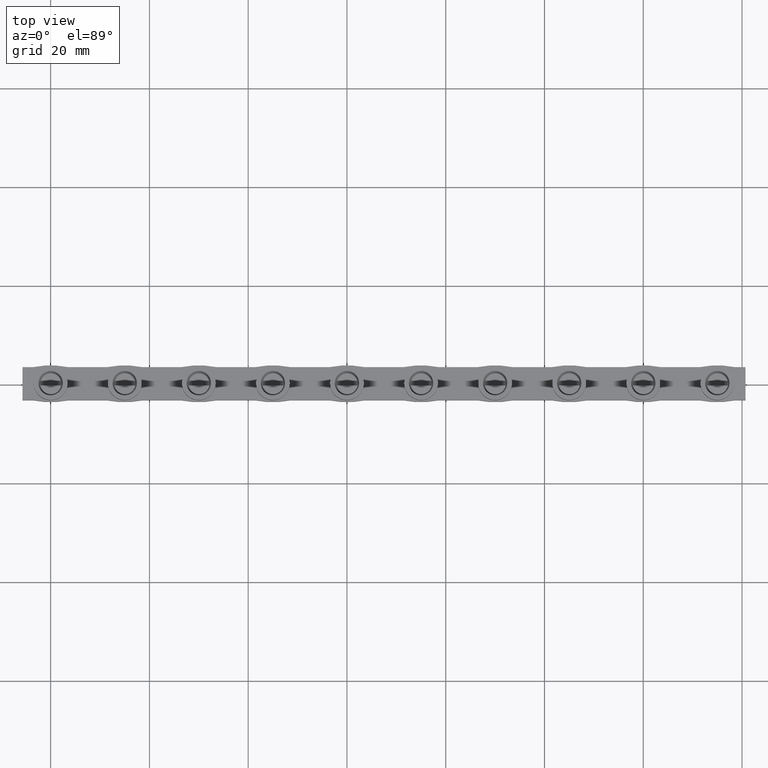
[diagram: clean part render]
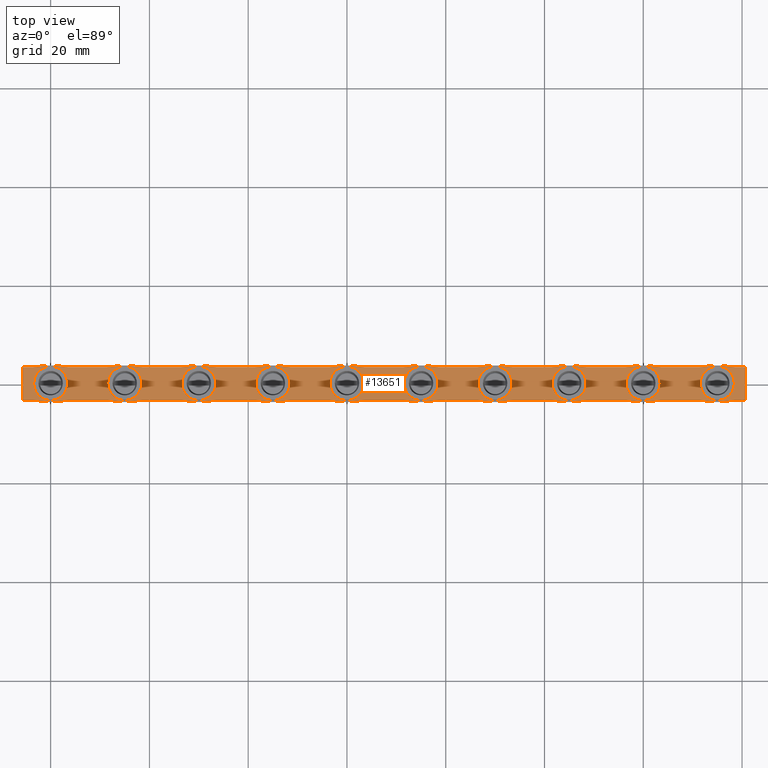
[diagram: same view with one face highlighted and labeled with its STEP entity id]
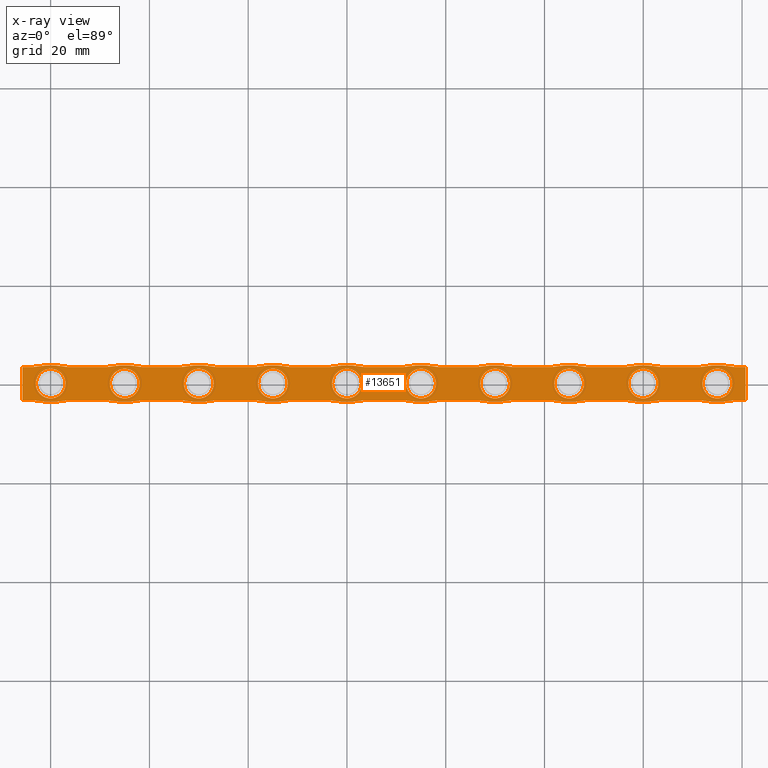
[diagram: x-ray of the same camera — body ghosted, the highlighted face saturated]
A machine part, top view. The second image highlights one B-rep face of the part: STEP entity #13651.
The next image is the same camera in x-ray: the body ghosted, the highlighted face saturated — about 0% of this face is hidden behind the body in this view.
In plain terms, the highlighted planar face has unit normal (0, 0, -1).
Its self-contained STEP definition (entity closure, byte-faithful):
#1863 = LINE ( 'NONE', #1865, #11857 ) ;
#1865 = CARTESIAN_POINT ( 'NONE',  ( 46.15000000000001300, -3.349999999999856600, -0.9000000000000014700 ) ) ;
#1866 = LINE ( 'NONE', #1886, #11895 ) ;
#1870 = LINE ( 'NONE', #1924, #11847 ) ;
#1875 = CARTESIAN_POINT ( 'NONE',  ( 31.15000000000001300, 3.350000000000084500, -0.9000000000000014700 ) ) ;
#1876 = LINE ( 'NONE', #1878, #11845 ) ;
#1877 = DIRECTION ( 'NONE',  ( -1.000000000000000000, -1.245679091791855700E-016, -0.0000000000000000000 ) ) ;
#1878 = CARTESIAN_POINT ( 'NONE',  ( 43.85000000000163600, -3.349999999999734100, -0.9000000000000014700 ) ) ;
#1883 = DIRECTION ( 'NONE',  ( 1.000000000000000000, 1.245679091791856200E-016, -0.0000000000000000000 ) ) ;
#1884 = DIRECTION ( 'NONE',  ( -1.000000000000000000, -1.245679091791855700E-016, -0.0000000000000000000 ) ) ;
#1886 = CARTESIAN_POINT ( 'NONE',  ( 28.85000000000164300, -3.349999999999794900, -0.9000000000000014700 ) ) ;
#1887 = LINE ( 'NONE', #1875, #11883 ) ;
#1888 = DIRECTION ( 'NONE',  ( -1.000000000000000000, -1.245679091791856200E-016, -0.0000000000000000000 ) ) ;
#1889 = DIRECTION ( 'NONE',  ( 1.000000000000000000, 1.245679091791855700E-016, -0.0000000000000000000 ) ) ;
#1891 = LINE ( 'NONE', #1894, #11866 ) ;
#1894 = CARTESIAN_POINT ( 'NONE',  ( 13.85000000000164300, 3.350000000000145800, -0.9000000000000014700 ) ) ;
#1907 = LINE ( 'NONE', #1922, #11869 ) ;
#1922 = CARTESIAN_POINT ( 'NONE',  ( 58.85000000000163600, 3.350000000000327400, -0.9000000000000014700 ) ) ;
#1924 = CARTESIAN_POINT ( 'NONE',  ( 103.8500000000016300, -3.349999999999492100, -0.9000000000000014700 ) ) ;
#1943 = DIRECTION ( 'NONE',  ( -1.000000000000000000, -1.245679091791855700E-016, -0.0000000000000000000 ) ) ;
#1947 = DIRECTION ( 'NONE',  ( 1.000000000000000000, 1.245679091791855700E-016, -0.0000000000000000000 ) ) ;
#1948 = DIRECTION ( 'NONE',  ( -1.000000000000000000, -2.944367993170586500E-016, 0.0000000000000000000 ) ) ;
#1949 = CARTESIAN_POINT ( 'NONE',  ( 75.00000000000164800, -13.97500000000454500, -0.9000000000000014700 ) ) ;
#1952 = DIRECTION ( 'NONE',  ( -0.0000000000000000000, -0.0000000000000000000, -1.000000000000000000 ) ) ;
#1953 = LINE ( 'NONE', #1971, #11848 ) ;
#1955 = DIRECTION ( 'NONE',  ( 0.0000000000000000000, 0.0000000000000000000, 1.000000000000000000 ) ) ;
#1958 = DIRECTION ( 'NONE',  ( 1.000000000000000000, 1.245679091791855700E-016, -0.0000000000000000000 ) ) ;
#1959 = CARTESIAN_POINT ( 'NONE',  ( 120.0000000000016500, 4.258289543614643900E-013, -0.9000000000000014700 ) ) ;
#1960 = DIRECTION ( 'NONE',  ( 1.000000000000000000, 2.491358183583654200E-016, 0.0000000000000000000 ) ) ;
#1961 = LINE ( 'NONE', #1963, #11865 ) ;
#1962 = LINE ( 'NONE', #1977, #11841 ) ;
#1963 = CARTESIAN_POINT ( 'NONE',  ( 118.8500000000016300, -3.349999999999431700, -0.9000000000000014700 ) ) ;
#1967 = DIRECTION ( 'NONE',  ( 1.000000000000000000, 2.944367993170585000E-016, 0.0000000000000000000 ) ) ;
#1970 = DIRECTION ( 'NONE',  ( 0.0000000000000000000, 0.0000000000000000000, -1.000000000000000000 ) ) ;
#1971 = CARTESIAN_POINT ( 'NONE',  ( 73.85000000000164300, 3.350000000000387800, -0.9000000000000014700 ) ) ;
#1973 = DIRECTION ( 'NONE',  ( -1.000000000000000000, 0.0000000000000000000, 0.0000000000000000000 ) ) ;
#1974 = CARTESIAN_POINT ( 'NONE',  ( 45.00000000000164100, 13.97500000000491300, -0.9000000000000014700 ) ) ;
#1977 = CARTESIAN_POINT ( 'NONE',  ( 118.8500000000016300, 3.350000000000569400, -0.9000000000000014700 ) ) ;
#1979 = DIRECTION ( 'NONE',  ( -0.0000000000000000000, -0.0000000000000000000, -1.000000000000000000 ) ) ;
#1981 = CARTESIAN_POINT ( 'NONE',  ( 45.00000000000164800, 1.230000717016241000E-013, -0.9000000000000014700 ) ) ;
#1982 = DIRECTION ( 'NONE',  ( 1.000000000000000000, 1.245679091791855700E-016, -0.0000000000000000000 ) ) ;
#1984 = CARTESIAN_POINT ( 'NONE',  ( 5.128276275852789100E-015, -13.97500000000478900, -0.9000000000000014700 ) ) ;
#1985 = DIRECTION ( 'NONE',  ( -1.000000000000000000, -1.245679091791855700E-016, -0.0000000000000000000 ) ) ;
#1986 = DIRECTION ( 'NONE',  ( 0.0000000000000000000, 0.0000000000000000000, 1.000000000000000000 ) ) ;
#1988 = DIRECTION ( 'NONE',  ( 1.000000000000000000, 2.491358183583736600E-016, 0.0000000000000000000 ) ) ;
#1991 = DIRECTION ( 'NONE',  ( 1.000000000000000000, 2.491358183583654200E-016, 0.0000000000000000000 ) ) ;
#1993 = DIRECTION ( 'NONE',  ( 1.000000000000000000, 1.245679091791855700E-016, -0.0000000000000000000 ) ) ;
#1994 = DIRECTION ( 'NONE',  ( -1.000000000000000000, -2.944367993170586500E-016, 0.0000000000000000000 ) ) ;
#1995 = LINE ( 'NONE', #2017, #11896 ) ;
#1996 = DIRECTION ( 'NONE',  ( -0.0000000000000000000, -0.0000000000000000000, -1.000000000000000000 ) ) ;
#1997 = LINE ( 'NONE', #2021, #11881 ) ;
#1998 = CARTESIAN_POINT ( 'NONE',  ( -5.699999999999996600, -3.349999999999916200, -0.9000000000000014700 ) ) ;
#1999 = DIRECTION ( 'NONE',  ( 2.009125974575783600E-016, -1.000000000000000000, 0.0000000000000000000 ) ) ;
#2000 = DIRECTION ( 'NONE',  ( 0.0000000000000000000, 0.0000000000000000000, -1.000000000000000000 ) ) ;
#2001 = DIRECTION ( 'NONE',  ( -1.000000000000000000, -1.245679091791856200E-016, -0.0000000000000000000 ) ) ;
#2002 = DIRECTION ( 'NONE',  ( 1.000000000000000000, 2.491358183583736600E-016, 0.0000000000000000000 ) ) ;
#2003 = DIRECTION ( 'NONE',  ( 1.000000000000000000, 2.944367993170586000E-016, 0.0000000000000000000 ) ) ;
#2006 = DIRECTION ( 'NONE',  ( 4.822322090079283200E-017, -1.000000000000000000, 0.0000000000000000000 ) ) ;
#2007 = CARTESIAN_POINT ( 'NONE',  ( 43.85000000000163600, 3.350000000000267000, -0.9000000000000014700 ) ) ;
#2008 = CARTESIAN_POINT ( 'NONE',  ( 103.8500000000016300, 3.350000000000509500, -0.9000000000000014700 ) ) ;
#2009 = CARTESIAN_POINT ( 'NONE',  ( 30.00000000000164500, 13.97500000000485100, -0.9000000000000014700 ) ) ;
#2010 = LINE ( 'NONE', #2012, #11850 ) ;
#2011 = CARTESIAN_POINT ( 'NONE',  ( 60.00000000000164800, 1.835658482335921500E-013, -0.9000000000000014700 ) ) ;
#2012 = CARTESIAN_POINT ( 'NONE',  ( 88.85000000000164300, -3.349999999999552400, -0.9000000000000014700 ) ) ;
#2013 = DIRECTION ( 'NONE',  ( 0.0000000000000000000, 0.0000000000000000000, -1.000000000000000000 ) ) ;
#2014 = DIRECTION ( 'NONE',  ( 0.0000000000000000000, 0.0000000000000000000, -1.000000000000000000 ) ) ;
#2015 = LINE ( 'NONE', #1998, #11846 ) ;
#2016 = DIRECTION ( 'NONE',  ( -0.0000000000000000000, -0.0000000000000000000, -1.000000000000000000 ) ) ;
#2017 = CARTESIAN_POINT ( 'NONE',  ( 140.7000000000016700, -3.349999999999428500, -0.9000000000000014700 ) ) ;
#2019 = CARTESIAN_POINT ( 'NONE',  ( 75.00000000000164800, 2.441316247655602000E-013, -0.9000000000000014700 ) ) ;
#2021 = CARTESIAN_POINT ( 'NONE',  ( 16.15000000000000900, 3.350000000000087100, -0.9000000000000014700 ) ) ;
#2022 = CARTESIAN_POINT ( 'NONE',  ( 30.00000000000165200, -13.97500000000472700, -0.9000000000000014700 ) ) ;
#2023 = DIRECTION ( 'NONE',  ( 1.000000000000000000, 1.245679091791855700E-016, -0.0000000000000000000 ) ) ;
#2027 = LINE ( 'NONE', #2007, #11849 ) ;
#2028 = LINE ( 'NONE', #2008, #11874 ) ;
#2029 = CARTESIAN_POINT ( 'NONE',  ( 0.0000000000000000000, 0.0000000000000000000, -0.9000000000000014700 ) ) ;
#2031 = CARTESIAN_POINT ( 'NONE',  ( 105.0000000000016500, 13.97500000000515300, -0.9000000000000014700 ) ) ;
#2036 = DIRECTION ( 'NONE',  ( 0.0000000000000000000, 0.0000000000000000000, -1.000000000000000000 ) ) ;
#2038 = CARTESIAN_POINT ( 'NONE',  ( 105.0000000000016500, 3.652631778294963100E-013, -0.9000000000000014700 ) ) ;
#2039 = DIRECTION ( 'NONE',  ( -1.000000000000000000, 0.0000000000000000000, 0.0000000000000000000 ) ) ;
#2040 = DIRECTION ( 'NONE',  ( -1.000000000000000000, -1.245679091791855700E-016, -0.0000000000000000000 ) ) ;
#2041 = CARTESIAN_POINT ( 'NONE',  ( 13.85000000000164300, -3.349999999999855300, -0.9000000000000014700 ) ) ;
#2048 = CARTESIAN_POINT ( 'NONE',  ( 31.15000000000001300, -3.349999999999917500, -0.9000000000000014700 ) ) ;
#2051 = DIRECTION ( 'NONE',  ( 1.000000000000000000, 2.491358183583695200E-016, 0.0000000000000000000 ) ) ;
#2052 = DIRECTION ( 'NONE',  ( -1.000000000000000000, -2.944367993170587500E-016, 0.0000000000000000000 ) ) ;
#2053 = LINE ( 'NONE', #2048, #11927 ) ;
#2056 = DIRECTION ( 'NONE',  ( 1.000000000000000000, 1.245679091791856200E-016, -0.0000000000000000000 ) ) ;
#2059 = DIRECTION ( 'NONE',  ( -0.0000000000000000000, -0.0000000000000000000, -1.000000000000000000 ) ) ;
#2060 = CARTESIAN_POINT ( 'NONE',  ( 30.00000000000165200, 6.243429516965604400E-014, -0.9000000000000014700 ) ) ;
#2063 = LINE ( 'NONE', #2041, #11920 ) ;
#2064 = DIRECTION ( 'NONE',  ( 0.0000000000000000000, 0.0000000000000000000, -1.000000000000000000 ) ) ;
#2066 = DIRECTION ( 'NONE',  ( 1.000000000000000000, 2.491358183583654200E-016, 0.0000000000000000000 ) ) ;
#2067 = DIRECTION ( 'NONE',  ( -1.000000000000000000, -1.245679091791855700E-016, -0.0000000000000000000 ) ) ;
#2072 = CARTESIAN_POINT ( 'NONE',  ( 58.85000000000163600, -3.349999999999673700, -0.9000000000000014700 ) ) ;
#2073 = LINE ( 'NONE', #2072, #11904 ) ;
#2074 = DIRECTION ( 'NONE',  ( -1.000000000000000000, -2.944367993170586000E-016, 0.0000000000000000000 ) ) ;
#2079 = DIRECTION ( 'NONE',  ( -1.000000000000000000, -2.944367993170587500E-016, 0.0000000000000000000 ) ) ;
#2085 = DIRECTION ( 'NONE',  ( -0.0000000000000000000, -0.0000000000000000000, -1.000000000000000000 ) ) ;
#2089 = CARTESIAN_POINT ( 'NONE',  ( 60.00000000000164100, 13.97500000000497300, -0.9000000000000014700 ) ) ;
#2093 = DIRECTION ( 'NONE',  ( -0.0000000000000000000, -0.0000000000000000000, -1.000000000000000000 ) ) ;
#2104 = CARTESIAN_POINT ( 'NONE',  ( 75.00000000000164800, 13.97500000000503400, -0.9000000000000014700 ) ) ;
#2105 = DIRECTION ( 'NONE',  ( -1.000000000000000000, -1.245679091791855700E-016, -0.0000000000000000000 ) ) ;
#2129 = CARTESIAN_POINT ( 'NONE',  ( 90.00000000000164800, 13.97500000000509400, -0.9000000000000014700 ) ) ;
#2156 = DIRECTION ( 'NONE',  ( -0.0000000000000000000, -0.0000000000000000000, -1.000000000000000000 ) ) ;
#2157 = DIRECTION ( 'NONE',  ( -1.000000000000000000, -2.944367993170587500E-016, 0.0000000000000000000 ) ) ;
#2161 = DIRECTION ( 'NONE',  ( 1.000000000000000000, 2.491358183583654200E-016, 0.0000000000000000000 ) ) ;
#2185 = CARTESIAN_POINT ( 'NONE',  ( 135.0000000000016500, 4.863947308934324600E-013, -0.9000000000000014700 ) ) ;
#2208 = DIRECTION ( 'NONE',  ( 0.0000000000000000000, 0.0000000000000000000, -1.000000000000000000 ) ) ;
#2219 = CARTESIAN_POINT ( 'NONE',  ( 15.00000000000165000, 1.868518637687989600E-015, -0.9000000000000014700 ) ) ;
#2228 = CARTESIAN_POINT ( 'NONE',  ( 15.00000000000164500, 13.97500000000479000, -0.9000000000000014700 ) ) ;
#2229 = DIRECTION ( 'NONE',  ( -1.000000000000000000, -2.944367993170586500E-016, 0.0000000000000000000 ) ) ;
#2236 = DIRECTION ( 'NONE',  ( -0.0000000000000000000, -0.0000000000000000000, -1.000000000000000000 ) ) ;
#2240 = DIRECTION ( 'NONE',  ( 1.000000000000000000, 2.491358183583712400E-016, 0.0000000000000000000 ) ) ;
#2242 = DIRECTION ( 'NONE',  ( 0.0000000000000000000, 0.0000000000000000000, 1.000000000000000000 ) ) ;
#2246 = DIRECTION ( 'NONE',  ( 1.000000000000000000, 0.0000000000000000000, 0.0000000000000000000 ) ) ;
#2248 = LINE ( 'NONE', #2300, #12008 ) ;
#2254 = DIRECTION ( 'NONE',  ( 0.0000000000000000000, 0.0000000000000000000, -1.000000000000000000 ) ) ;
#2256 = CARTESIAN_POINT ( 'NONE',  ( 1.734289795103002200E-015, 13.97500000000478900, -0.9000000000000014700 ) ) ;
#2281 = CARTESIAN_POINT ( 'NONE',  ( 73.85000000000164300, -3.349999999999613300, -0.9000000000000014700 ) ) ;
#2284 = DIRECTION ( 'NONE',  ( 1.000000000000000000, 1.245679091791856200E-016, -0.0000000000000000000 ) ) ;
#2292 = DIRECTION ( 'NONE',  ( -1.000000000000000000, -1.245679091791855700E-016, -0.0000000000000000000 ) ) ;
#2299 = LINE ( 'NONE', #2281, #11979 ) ;
#2300 = CARTESIAN_POINT ( 'NONE',  ( 16.15000000000000900, -3.349999999999913900, -0.9000000000000014700 ) ) ;
#2326 = DIRECTION ( 'NONE',  ( 0.0000000000000000000, 0.0000000000000000000, -1.000000000000000000 ) ) ;
#2343 = CARTESIAN_POINT ( 'NONE',  ( 90.00000000000164800, 3.046974012975282300E-013, -0.9000000000000014700 ) ) ;
#2350 = DIRECTION ( 'NONE',  ( 1.000000000000000000, 2.491358183583654200E-016, 0.0000000000000000000 ) ) ;
#3253 = DIRECTION ( 'NONE',  ( 1.000000000000000000, 2.944367993170587500E-016, 0.0000000000000000000 ) ) ;
#3256 = CARTESIAN_POINT ( 'NONE',  ( 135.0000000000016500, -13.97500000000430400, -0.9000000000000014700 ) ) ;
#3261 = CARTESIAN_POINT ( 'NONE',  ( 90.00000000000164800, -13.97500000000448300, -0.9000000000000014700 ) ) ;
#3266 = DIRECTION ( 'NONE',  ( 1.000000000000000000, 2.944367993170585000E-016, 0.0000000000000000000 ) ) ;
#3276 = DIRECTION ( 'NONE',  ( -0.0000000000000000000, -0.0000000000000000000, -1.000000000000000000 ) ) ;
#3292 = DIRECTION ( 'NONE',  ( 1.000000000000000000, 2.944367993170585000E-016, 0.0000000000000000000 ) ) ;
#3306 = CARTESIAN_POINT ( 'NONE',  ( 105.0000000000016500, -13.97500000000442500, -0.9000000000000014700 ) ) ;
#3319 = DIRECTION ( 'NONE',  ( -0.0000000000000000000, -0.0000000000000000000, -1.000000000000000000 ) ) ;
#3320 = DIRECTION ( 'NONE',  ( -0.0000000000000000000, -0.0000000000000000000, -1.000000000000000000 ) ) ;
#3339 = EDGE_LOOP ( 'NONE', ( #5155, #5172, #5144, #5160, #5208, #5170, #5187, #5174, #5183, #5244, #5150, #5165, #5156, #5182, #5173, #5141, #5145, #5171, #5180, #5200, #5185, #5192, #5195, #5179, #5201, #5138, #5162, #5199, #5153, #5198, #5139, #5140, #5146, #5178, #5196, #5166, #5154, #5184, #5189, #5159, #5197, #5152, #5181, #5176 ) ) ;
#3403 = EDGE_LOOP ( 'NONE', ( #5190, #5169 ) ) ;
#3404 = EDGE_LOOP ( 'NONE', ( #5326, #5234 ) ) ;
#3406 = EDGE_LOOP ( 'NONE', ( #5177, #5203 ) ) ;
#3414 = EDGE_LOOP ( 'NONE', ( #5245, #5239 ) ) ;
#3419 = EDGE_LOOP ( 'NONE', ( #5232, #5236 ) ) ;
#3427 = EDGE_LOOP ( 'NONE', ( #5265, #5224 ) ) ;
#3430 = EDGE_LOOP ( 'NONE', ( #5205, #5250 ) ) ;
#3431 = EDGE_LOOP ( 'NONE', ( #5218, #5251 ) ) ;
#3434 = EDGE_LOOP ( 'NONE', ( #5249, #5257 ) ) ;
#3444 = EDGE_LOOP ( 'NONE', ( #5191, #5186 ) ) ;
#4108 = VERTEX_POINT ( 'NONE', #17895 ) ;
#4115 = VERTEX_POINT ( 'NONE', #17901 ) ;
#4119 = VERTEX_POINT ( 'NONE', #17913 ) ;
#4124 = VERTEX_POINT ( 'NONE', #17879 ) ;
#4125 = VERTEX_POINT ( 'NONE', #17871 ) ;
#4128 = VERTEX_POINT ( 'NONE', #17915 ) ;
#4131 = VERTEX_POINT ( 'NONE', #17890 ) ;
#4132 = VERTEX_POINT ( 'NONE', #17917 ) ;
#4133 = VERTEX_POINT ( 'NONE', #17889 ) ;
#4134 = VERTEX_POINT ( 'NONE', #17868 ) ;
#4135 = VERTEX_POINT ( 'NONE', #17975 ) ;
#4136 = VERTEX_POINT ( 'NONE', #17962 ) ;
#4137 = VERTEX_POINT ( 'NONE', #17969 ) ;
#4138 = VERTEX_POINT ( 'NONE', #17926 ) ;
#4140 = VERTEX_POINT ( 'NONE', #17974 ) ;
#4141 = VERTEX_POINT ( 'NONE', #17977 ) ;
#4142 = VERTEX_POINT ( 'NONE', #17932 ) ;
#4145 = VERTEX_POINT ( 'NONE', #17978 ) ;
#4146 = VERTEX_POINT ( 'NONE', #17946 ) ;
#4147 = VERTEX_POINT ( 'NONE', #17981 ) ;
#4148 = VERTEX_POINT ( 'NONE', #17943 ) ;
#4150 = VERTEX_POINT ( 'NONE', #17937 ) ;
#4151 = VERTEX_POINT ( 'NONE', #17938 ) ;
#4152 = VERTEX_POINT ( 'NONE', #17968 ) ;
#4154 = VERTEX_POINT ( 'NONE', #17971 ) ;
#4156 = VERTEX_POINT ( 'NONE', #17933 ) ;
#4157 = VERTEX_POINT ( 'NONE', #17927 ) ;
#4159 = VERTEX_POINT ( 'NONE', #17967 ) ;
#4161 = VERTEX_POINT ( 'NONE', #17945 ) ;
#4165 = VERTEX_POINT ( 'NONE', #17970 ) ;
#4166 = VERTEX_POINT ( 'NONE', #17955 ) ;
#4167 = VERTEX_POINT ( 'NONE', #17929 ) ;
#4168 = VERTEX_POINT ( 'NONE', #17947 ) ;
#4169 = VERTEX_POINT ( 'NONE', #17948 ) ;
#4170 = VERTEX_POINT ( 'NONE', #17939 ) ;
#4171 = VERTEX_POINT ( 'NONE', #17961 ) ;
#4173 = VERTEX_POINT ( 'NONE', #17940 ) ;
#4174 = VERTEX_POINT ( 'NONE', #17972 ) ;
#4175 = VERTEX_POINT ( 'NONE', #17951 ) ;
#4176 = VERTEX_POINT ( 'NONE', #17930 ) ;
#4177 = VERTEX_POINT ( 'NONE', #17941 ) ;
#4194 = VERTEX_POINT ( 'NONE', #18020 ) ;
#4203 = VERTEX_POINT ( 'NONE', #18028 ) ;
#4223 = VERTEX_POINT ( 'NONE', #18004 ) ;
#4232 = VERTEX_POINT ( 'NONE', #17989 ) ;
#5138 = ORIENTED_EDGE ( 'NONE', *, *, #12948, .T. ) ;
#5139 = ORIENTED_EDGE ( 'NONE', *, *, #13010, .F. ) ;
#5140 = ORIENTED_EDGE ( 'NONE', *, *, #12920, .T. ) ;
#5141 = ORIENTED_EDGE ( 'NONE', *, *, #12951, .F. ) ;
#5144 = ORIENTED_EDGE ( 'NONE', *, *, #12855, .F. ) ;
#5145 = ORIENTED_EDGE ( 'NONE', *, *, #12873, .F. ) ;
#5146 = ORIENTED_EDGE ( 'NONE', *, *, #12954, .F. ) ;
#5150 = ORIENTED_EDGE ( 'NONE', *, *, #12904, .F. ) ;
#5152 = ORIENTED_EDGE ( 'NONE', *, *, #13017, .F. ) ;
#5153 = ORIENTED_EDGE ( 'NONE', *, *, #13003, .T. ) ;
#5154 = ORIENTED_EDGE ( 'NONE', *, *, #12975, .F. ) ;
#5155 = ORIENTED_EDGE ( 'NONE', *, *, #12862, .F. ) ;
#5156 = ORIENTED_EDGE ( 'NONE', *, *, #12905, .F. ) ;
#5159 = ORIENTED_EDGE ( 'NONE', *, *, #12973, .F. ) ;
#5160 = ORIENTED_EDGE ( 'NONE', *, *, #12939, .F. ) ;
#5162 = ORIENTED_EDGE ( 'NONE', *, *, #12950, .T. ) ;
#5165 = ORIENTED_EDGE ( 'NONE', *, *, #12937, .F. ) ;
#5166 = ORIENTED_EDGE ( 'NONE', *, *, #12916, .F. ) ;
#5169 = ORIENTED_EDGE ( 'NONE', *, *, #12935, .T. ) ;
#5170 = ORIENTED_EDGE ( 'NONE', *, *, #12936, .F. ) ;
#5171 = ORIENTED_EDGE ( 'NONE', *, *, #12857, .F. ) ;
#5172 = ORIENTED_EDGE ( 'NONE', *, *, #12927, .F. ) ;
#5173 = ORIENTED_EDGE ( 'NONE', *, *, #12931, .F. ) ;
#5174 = ORIENTED_EDGE ( 'NONE', *, *, #12949, .F. ) ;
#5176 = ORIENTED_EDGE ( 'NONE', *, *, #12958, .F. ) ;
#5177 = ORIENTED_EDGE ( 'NONE', *, *, #13565, .T. ) ;
#5178 = ORIENTED_EDGE ( 'NONE', *, *, #12967, .F. ) ;
#5179 = ORIENTED_EDGE ( 'NONE', *, *, #12923, .T. ) ;
#5180 = ORIENTED_EDGE ( 'NONE', *, *, #12852, .F. ) ;
#5181 = ORIENTED_EDGE ( 'NONE', *, *, #12959, .F. ) ;
#5182 = ORIENTED_EDGE ( 'NONE', *, *, #12930, .F. ) ;
#5183 = ORIENTED_EDGE ( 'NONE', *, *, #12859, .F. ) ;
#5184 = ORIENTED_EDGE ( 'NONE', *, *, #12924, .F. ) ;
#5185 = ORIENTED_EDGE ( 'NONE', *, *, #12944, .F. ) ;
#5186 = ORIENTED_EDGE ( 'NONE', *, *, #13033, .T. ) ;
#5187 = ORIENTED_EDGE ( 'NONE', *, *, #12903, .F. ) ;
#5189 = ORIENTED_EDGE ( 'NONE', *, *, #12972, .F. ) ;
#5190 = ORIENTED_EDGE ( 'NONE', *, *, #13470, .T. ) ;
#5191 = ORIENTED_EDGE ( 'NONE', *, *, #13500, .T. ) ;
#5192 = ORIENTED_EDGE ( 'NONE', *, *, #12877, .T. ) ;
#5195 = ORIENTED_EDGE ( 'NONE', *, *, #12891, .F. ) ;
#5196 = ORIENTED_EDGE ( 'NONE', *, *, #12942, .F. ) ;
#5197 = ORIENTED_EDGE ( 'NONE', *, *, #12991, .F. ) ;
#5198 = ORIENTED_EDGE ( 'NONE', *, *, #12969, .T. ) ;
#5199 = ORIENTED_EDGE ( 'NONE', *, *, #13013, .T. ) ;
#5200 = ORIENTED_EDGE ( 'NONE', *, *, #12917, .F. ) ;
#5201 = ORIENTED_EDGE ( 'NONE', *, *, #12932, .T. ) ;
#5203 = ORIENTED_EDGE ( 'NONE', *, *, #12947, .T. ) ;
#5205 = ORIENTED_EDGE ( 'NONE', *, *, #12825, .T. ) ;
#5208 = ORIENTED_EDGE ( 'NONE', *, *, #12955, .F. ) ;
#5218 = ORIENTED_EDGE ( 'NONE', *, *, #13518, .T. ) ;
#5224 = ORIENTED_EDGE ( 'NONE', *, *, #12964, .T. ) ;
#5232 = ORIENTED_EDGE ( 'NONE', *, *, #13365, .T. ) ;
#5234 = ORIENTED_EDGE ( 'NONE', *, *, #12943, .T. ) ;
#5236 = ORIENTED_EDGE ( 'NONE', *, *, #12998, .T. ) ;
#5239 = ORIENTED_EDGE ( 'NONE', *, *, #12733, .F. ) ;
#5244 = ORIENTED_EDGE ( 'NONE', *, *, #12856, .F. ) ;
#5245 = ORIENTED_EDGE ( 'NONE', *, *, #12957, .F. ) ;
#5249 = ORIENTED_EDGE ( 'NONE', *, *, #13467, .T. ) ;
#5250 = ORIENTED_EDGE ( 'NONE', *, *, #13002, .T. ) ;
#5251 = ORIENTED_EDGE ( 'NONE', *, *, #12953, .T. ) ;
#5257 = ORIENTED_EDGE ( 'NONE', *, *, #12960, .T. ) ;
#5265 = ORIENTED_EDGE ( 'NONE', *, *, #12842, .T. ) ;
#5326 = ORIENTED_EDGE ( 'NONE', *, *, #13555, .T. ) ;
#5907 = VERTEX_POINT ( 'NONE', #10645 ) ;
#5960 = VERTEX_POINT ( 'NONE', #9256 ) ;
#5967 = VERTEX_POINT ( 'NONE', #9261 ) ;
#6024 = VERTEX_POINT ( 'NONE', #9372 ) ;
#6027 = VERTEX_POINT ( 'NONE', #9345 ) ;
#6030 = VERTEX_POINT ( 'NONE', #9334 ) ;
#6055 = VERTEX_POINT ( 'NONE', #9358 ) ;
#6081 = VERTEX_POINT ( 'NONE', #9403 ) ;
#6085 = VERTEX_POINT ( 'NONE', #9402 ) ;
#6104 = VERTEX_POINT ( 'NONE', #9400 ) ;
#6139 = VERTEX_POINT ( 'NONE', #9483 ) ;
#6154 = VERTEX_POINT ( 'NONE', #9471 ) ;
#6170 = VERTEX_POINT ( 'NONE', #9452 ) ;
#6174 = VERTEX_POINT ( 'NONE', #9534 ) ;
#6200 = VERTEX_POINT ( 'NONE', #9537 ) ;
#6215 = VERTEX_POINT ( 'NONE', #9514 ) ;
#6222 = VERTEX_POINT ( 'NONE', #9494 ) ;
#6248 = VERTEX_POINT ( 'NONE', #9572 ) ;
#6250 = VERTEX_POINT ( 'NONE', #9579 ) ;
#9256 = CARTESIAN_POINT ( 'NONE',  ( 132.0000000000016500, 4.852799293986131700E-013, -0.9000000000000014700 ) ) ;
#9261 = CARTESIAN_POINT ( 'NONE',  ( 138.0000000000016500, 4.871421383485075800E-013, -0.9000000000000014700 ) ) ;
#9334 = CARTESIAN_POINT ( 'NONE',  ( 102.0000000000016500, 3.641483763346769600E-013, -0.9000000000000014700 ) ) ;
#9345 = CARTESIAN_POINT ( 'NONE',  ( 123.0000000000016500, 4.265763618165395000E-013, -0.9000000000000014700 ) ) ;
#9358 = CARTESIAN_POINT ( 'NONE',  ( 108.0000000000016500, 3.660105852845714200E-013, -0.9000000000000014700 ) ) ;
#9372 = CARTESIAN_POINT ( 'NONE',  ( 117.0000000000016500, 4.247141528666450400E-013, -0.9000000000000014700 ) ) ;
#9400 = CARTESIAN_POINT ( 'NONE',  ( 78.00000000000164800, 2.448790322206352700E-013, -0.9000000000000014700 ) ) ;
#9402 = CARTESIAN_POINT ( 'NONE',  ( 87.00000000000164800, 3.035825998027089300E-013, -0.9000000000000014700 ) ) ;
#9403 = CARTESIAN_POINT ( 'NONE',  ( 72.00000000000164800, 2.430168232707408600E-013, -0.9000000000000014700 ) ) ;
#9452 = CARTESIAN_POINT ( 'NONE',  ( 93.00000000000164800, 3.054448087526033500E-013, -0.9000000000000014700 ) ) ;
#9471 = CARTESIAN_POINT ( 'NONE',  ( 57.00000000000164800, 1.824510467387728300E-013, -0.9000000000000014700 ) ) ;
#9483 = CARTESIAN_POINT ( 'NONE',  ( 63.00000000000164800, 1.843132556886672700E-013, -0.9000000000000014700 ) ) ;
#9494 = CARTESIAN_POINT ( 'NONE',  ( -2.999999999999999100, 0.0000000000000000000, -0.9000000000000014700 ) ) ;
#9514 = CARTESIAN_POINT ( 'NONE',  ( 48.00000000000165600, 1.237474791566992100E-013, -0.9000000000000014700 ) ) ;
#9534 = CARTESIAN_POINT ( 'NONE',  ( 42.00000000000164800, 1.218852702068047800E-013, -0.9000000000000014700 ) ) ;
#9537 = CARTESIAN_POINT ( 'NONE',  ( 2.999999999999999100, 3.673940397442058900E-016, -0.9000000000000014700 ) ) ;
#9572 = CARTESIAN_POINT ( 'NONE',  ( 18.00000000000164800, 2.615926092763103100E-015, -0.9000000000000014700 ) ) ;
#9579 = CARTESIAN_POINT ( 'NONE',  ( 33.00000000000165600, 6.318170262473114700E-014, -0.9000000000000014700 ) ) ;
#9630 = DIRECTION ( 'NONE',  ( 0.0000000000000000000, 0.0000000000000000000, 1.000000000000000000 ) ) ;
#9636 = DIRECTION ( 'NONE',  ( -1.000000000000000000, 0.0000000000000000000, 0.0000000000000000000 ) ) ;
#9641 = CARTESIAN_POINT ( 'NONE',  ( 0.0000000000000000000, 0.0000000000000000000, -0.9000000000000014700 ) ) ;
#9757 = DIRECTION ( 'NONE',  ( 0.0000000000000000000, 0.0000000000000000000, -1.000000000000000000 ) ) ;
#9758 = DIRECTION ( 'NONE',  ( 1.000000000000000000, 2.491358183583654200E-016, 0.0000000000000000000 ) ) ;
#9820 = CARTESIAN_POINT ( 'NONE',  ( 75.00000000000164800, 2.441316247655602000E-013, -0.9000000000000014700 ) ) ;
#9983 = CARTESIAN_POINT ( 'NONE',  ( 45.00000000000164800, 1.230000717016241000E-013, -0.9000000000000014700 ) ) ;
#9991 = DIRECTION ( 'NONE',  ( 0.0000000000000000000, 0.0000000000000000000, -1.000000000000000000 ) ) ;
#9995 = DIRECTION ( 'NONE',  ( 1.000000000000000000, 2.491358183583736600E-016, 0.0000000000000000000 ) ) ;
#10048 = DIRECTION ( 'NONE',  ( 0.0000000000000000000, 0.0000000000000000000, -1.000000000000000000 ) ) ;
#10050 = DIRECTION ( 'NONE',  ( 1.000000000000000000, 2.491358183583712400E-016, 0.0000000000000000000 ) ) ;
#10077 = DIRECTION ( 'NONE',  ( 0.0000000000000000000, 0.0000000000000000000, -1.000000000000000000 ) ) ;
#10081 = CARTESIAN_POINT ( 'NONE',  ( 60.00000000000164800, 1.835658482335921500E-013, -0.9000000000000014700 ) ) ;
#10099 = CARTESIAN_POINT ( 'NONE',  ( 15.00000000000165000, 1.868518637687989600E-015, -0.9000000000000014700 ) ) ;
#10111 = DIRECTION ( 'NONE',  ( 1.000000000000000000, 2.491358183583736600E-016, 0.0000000000000000000 ) ) ;
#10142 = CARTESIAN_POINT ( 'NONE',  ( 30.00000000000165200, 6.243429516965604400E-014, -0.9000000000000014700 ) ) ;
#10217 = DIRECTION ( 'NONE',  ( 1.000000000000000000, 2.491358183583695200E-016, 0.0000000000000000000 ) ) ;
#10222 = DIRECTION ( 'NONE',  ( 0.0000000000000000000, 0.0000000000000000000, -1.000000000000000000 ) ) ;
#10233 = CARTESIAN_POINT ( 'NONE',  ( 45.00000000000164800, -13.97500000000466600, -0.9000000000000014700 ) ) ;
#10238 = CARTESIAN_POINT ( 'NONE',  ( 88.85000000000164300, 3.350000000000448600, -0.9000000000000014700 ) ) ;
#10243 = CARTESIAN_POINT ( 'NONE',  ( 135.0000000000016500, 13.97500000000527500, -0.9000000000000014700 ) ) ;
#10246 = DIRECTION ( 'NONE',  ( 1.000000000000000000, 1.245679091791855700E-016, -0.0000000000000000000 ) ) ;
#10253 = DIRECTION ( 'NONE',  ( -1.000000000000000000, -2.944367993170587500E-016, 0.0000000000000000000 ) ) ;
#10257 = DIRECTION ( 'NONE',  ( 1.000000000000000000, 1.245679091791855700E-016, -0.0000000000000000000 ) ) ;
#10260 = DIRECTION ( 'NONE',  ( -0.0000000000000000000, -0.0000000000000000000, -1.000000000000000000 ) ) ;
#10270 = LINE ( 'NONE', #10304, #11707 ) ;
#10280 = DIRECTION ( 'NONE',  ( -0.0000000000000000000, -0.0000000000000000000, -1.000000000000000000 ) ) ;
#10281 = LINE ( 'NONE', #10238, #11769 ) ;
#10300 = DIRECTION ( 'NONE',  ( 1.000000000000000000, 2.944367993170585000E-016, 0.0000000000000000000 ) ) ;
#10304 = CARTESIAN_POINT ( 'NONE',  ( 28.85000000000164300, 3.350000000000206100, -0.9000000000000014700 ) ) ;
#10324 = DIRECTION ( 'NONE',  ( -1.000000000000000000, -2.944367993170587500E-016, 0.0000000000000000000 ) ) ;
#10353 = DIRECTION ( 'NONE',  ( 1.000000000000000000, 2.944367993170587500E-016, 0.0000000000000000000 ) ) ;
#10356 = CARTESIAN_POINT ( 'NONE',  ( 120.0000000000016500, 13.97500000000521500, -0.9000000000000014700 ) ) ;
#10358 = DIRECTION ( 'NONE',  ( -0.0000000000000000000, -0.0000000000000000000, -1.000000000000000000 ) ) ;
#10364 = DIRECTION ( 'NONE',  ( -0.0000000000000000000, -0.0000000000000000000, -1.000000000000000000 ) ) ;
#10367 = CARTESIAN_POINT ( 'NONE',  ( 120.0000000000016500, -13.97500000000436400, -0.9000000000000014700 ) ) ;
#10393 = CARTESIAN_POINT ( 'NONE',  ( 60.00000000000164800, -13.97500000000460600, -0.9000000000000014700 ) ) ;
#10415 = DIRECTION ( 'NONE',  ( 1.000000000000000000, 2.944367993170587500E-016, 0.0000000000000000000 ) ) ;
#10423 = LINE ( 'NONE', #10559, #11808 ) ;
#10441 = DIRECTION ( 'NONE',  ( -0.0000000000000000000, -0.0000000000000000000, -1.000000000000000000 ) ) ;
#10548 = DIRECTION ( 'NONE',  ( -1.000000000000000000, -1.245679091791856200E-016, -0.0000000000000000000 ) ) ;
#10559 = CARTESIAN_POINT ( 'NONE',  ( 46.15000000000001300, 3.350000000000145300, -0.9000000000000014700 ) ) ;
#10587 = DIRECTION ( 'NONE',  ( -0.0000000000000000000, -0.0000000000000000000, -1.000000000000000000 ) ) ;
#10599 = DIRECTION ( 'NONE',  ( 1.000000000000000000, 2.944367993170586000E-016, 0.0000000000000000000 ) ) ;
#10609 = DIRECTION ( 'NONE',  ( 0.0000000000000000000, 0.0000000000000000000, -1.000000000000000000 ) ) ;
#10611 = CARTESIAN_POINT ( 'NONE',  ( 15.00000000000164800, -13.97500000000478700, -0.9000000000000014700 ) ) ;
#10612 = DIRECTION ( 'NONE',  ( 1.000000000000000000, 2.491358183583654200E-016, 0.0000000000000000000 ) ) ;
#10630 = CARTESIAN_POINT ( 'NONE',  ( 90.00000000000164800, 3.046974012975282300E-013, -0.9000000000000014700 ) ) ;
#10645 = CARTESIAN_POINT ( 'NONE',  ( 27.00000000000165200, 6.131949367483672300E-014, -0.9000000000000014700 ) ) ;
#11242 = AXIS2_PLACEMENT_3D ( 'NONE', #15735, #15733, #15734 ) ;
#11252 = CIRCLE ( 'NONE', #11242, 3.000000000000002700 ) ;
#11357 = CIRCLE ( 'NONE', #11368, 3.000000000000002700 ) ;
#11368 = AXIS2_PLACEMENT_3D ( 'NONE', #15628, #15645, #15631 ) ;
#11371 = CIRCLE ( 'NONE', #11379, 3.000000000000002700 ) ;
#11379 = AXIS2_PLACEMENT_3D ( 'NONE', #15653, #15630, #15632 ) ;
#11421 = CIRCLE ( 'NONE', #11432, 3.000000000000002700 ) ;
#11432 = AXIS2_PLACEMENT_3D ( 'NONE', #10630, #10609, #10612 ) ;
#11476 = CIRCLE ( 'NONE', #11526, 3.000000000000002700 ) ;
#11517 = AXIS2_PLACEMENT_3D ( 'NONE', #9820, #9757, #9758 ) ;
#11526 = AXIS2_PLACEMENT_3D ( 'NONE', #9983, #9991, #9995 ) ;
#11529 = CIRCLE ( 'NONE', #11517, 3.000000000000002700 ) ;
#11556 = CIRCLE ( 'NONE', #11558, 2.999999999999999100 ) ;
#11558 = AXIS2_PLACEMENT_3D ( 'NONE', #9641, #9630, #9636 ) ;
#11645 = CIRCLE ( 'NONE', #11678, 2.999999999999999100 ) ;
#11678 = AXIS2_PLACEMENT_3D ( 'NONE', #10099, #10048, #10050 ) ;
#11707 = VECTOR ( 'NONE', #10257, 1000.000000000000000 ) ;
#11721 = AXIS2_PLACEMENT_3D ( 'NONE', #10367, #10364, #10353 ) ;
#11726 = CIRCLE ( 'NONE', #11745, 17.67500000000478300 ) ;
#11736 = CIRCLE ( 'NONE', #11748, 17.67500000000479700 ) ;
#11742 = AXIS2_PLACEMENT_3D ( 'NONE', #10243, #10280, #10253 ) ;
#11745 = AXIS2_PLACEMENT_3D ( 'NONE', #10393, #10441, #10415 ) ;
#11746 = CIRCLE ( 'NONE', #11764, 3.000000000000002700 ) ;
#11748 = AXIS2_PLACEMENT_3D ( 'NONE', #10233, #10260, #10300 ) ;
#11753 = CIRCLE ( 'NONE', #11742, 17.67500000000478300 ) ;
#11755 = CIRCLE ( 'NONE', #11721, 17.67500000000478300 ) ;
#11756 = AXIS2_PLACEMENT_3D ( 'NONE', #10356, #10358, #10324 ) ;
#11764 = AXIS2_PLACEMENT_3D ( 'NONE', #10142, #10222, #10217 ) ;
#11768 = CIRCLE ( 'NONE', #11756, 17.67500000000478300 ) ;
#11769 = VECTOR ( 'NONE', #10246, 1000.000000000000000 ) ;
#11772 = CIRCLE ( 'NONE', #11791, 17.67500000000479700 ) ;
#11786 = CIRCLE ( 'NONE', #11811, 17.67500000000479700 ) ;
#11791 = AXIS2_PLACEMENT_3D ( 'NONE', #3256, #3319, #3292 ) ;
#11799 = CIRCLE ( 'NONE', #11803, 17.67500000000478300 ) ;
#11803 = AXIS2_PLACEMENT_3D ( 'NONE', #3261, #3320, #3253 ) ;
#11805 = AXIS2_PLACEMENT_3D ( 'NONE', #10611, #10587, #10599 ) ;
#11808 = VECTOR ( 'NONE', #10548, 1000.000000000000000 ) ;
#11811 = AXIS2_PLACEMENT_3D ( 'NONE', #3306, #3276, #3266 ) ;
#11814 = CIRCLE ( 'NONE', #11805, 17.67500000000479000 ) ;
#11836 = CIRCLE ( 'NONE', #11842, 17.67500000000478600 ) ;
#11841 = VECTOR ( 'NONE', #1958, 1000.000000000000000 ) ;
#11842 = AXIS2_PLACEMENT_3D ( 'NONE', #2009, #2016, #1994 ) ;
#11845 = VECTOR ( 'NONE', #1884, 1000.000000000000000 ) ;
#11846 = VECTOR ( 'NONE', #1999, 1000.000000000000000 ) ;
#11847 = VECTOR ( 'NONE', #1943, 1000.000000000000000 ) ;
#11848 = VECTOR ( 'NONE', #1947, 1000.000000000000000 ) ;
#11849 = VECTOR ( 'NONE', #2023, 1000.000000000000000 ) ;
#11850 = VECTOR ( 'NONE', #2067, 1000.000000000000000 ) ;
#11851 = AXIS2_PLACEMENT_3D ( 'NONE', #1949, #1952, #1967 ) ;
#11852 = CIRCLE ( 'NONE', #11877, 3.000000000000002700 ) ;
#11857 = VECTOR ( 'NONE', #1883, 1000.000000000000000 ) ;
#11863 = CIRCLE ( 'NONE', #11878, 2.999999999999999100 ) ;
#11864 = CIRCLE ( 'NONE', #11885, 17.67500000000479000 ) ;
#11865 = VECTOR ( 'NONE', #1985, 1000.000000000000000 ) ;
#11866 = VECTOR ( 'NONE', #1889, 1000.000000000000000 ) ;
#11869 = VECTOR ( 'NONE', #1982, 1000.000000000000000 ) ;
#11871 = CIRCLE ( 'NONE', #11880, 17.67500000000479000 ) ;
#11872 = CIRCLE ( 'NONE', #11873, 17.67500000000478600 ) ;
#11873 = AXIS2_PLACEMENT_3D ( 'NONE', #1974, #1979, #1948 ) ;
#11874 = VECTOR ( 'NONE', #1993, 1000.000000000000000 ) ;
#11876 = CIRCLE ( 'NONE', #11890, 3.000000000000002700 ) ;
#11877 = AXIS2_PLACEMENT_3D ( 'NONE', #2019, #2013, #1991 ) ;
#11878 = AXIS2_PLACEMENT_3D ( 'NONE', #2029, #1986, #2039 ) ;
#11880 = AXIS2_PLACEMENT_3D ( 'NONE', #2022, #1996, #2003 ) ;
#11881 = VECTOR ( 'NONE', #2001, 1000.000000000000000 ) ;
#11883 = VECTOR ( 'NONE', #1888, 1000.000000000000000 ) ;
#11884 = CIRCLE ( 'NONE', #11851, 17.67500000000479700 ) ;
#11885 = AXIS2_PLACEMENT_3D ( 'NONE', #1984, #1955, #1973 ) ;
#11887 = CIRCLE ( 'NONE', #11894, 3.000000000000002700 ) ;
#11889 = AXIS2_PLACEMENT_3D ( 'NONE', #2011, #2014, #1988 ) ;
#11890 = AXIS2_PLACEMENT_3D ( 'NONE', #1959, #1970, #1960 ) ;
#11892 = CIRCLE ( 'NONE', #11889, 3.000000000000002700 ) ;
#11894 = AXIS2_PLACEMENT_3D ( 'NONE', #1981, #2000, #2002 ) ;
#11895 = VECTOR ( 'NONE', #1877, 1000.000000000000000 ) ;
#11896 = VECTOR ( 'NONE', #2006, 1000.000000000000000 ) ;
#11904 = VECTOR ( 'NONE', #2105, 1000.000000000000000 ) ;
#11907 = AXIS2_PLACEMENT_3D ( 'NONE', #2185, #2208, #2161 ) ;
#11912 = AXIS2_PLACEMENT_3D ( 'NONE', #2129, #2156, #2157 ) ;
#11913 = AXIS2_PLACEMENT_3D ( 'NONE', #2060, #2036, #2051 ) ;
#11914 = CIRCLE ( 'NONE', #11943, 17.67500000000479000 ) ;
#11919 = AXIS2_PLACEMENT_3D ( 'NONE', #2038, #2064, #2066 ) ;
#11920 = VECTOR ( 'NONE', #2040, 1000.000000000000000 ) ;
#11927 = VECTOR ( 'NONE', #2056, 1000.000000000000000 ) ;
#11930 = AXIS2_PLACEMENT_3D ( 'NONE', #2031, #2059, #2052 ) ;
#11940 = CIRCLE ( 'NONE', #11919, 3.000000000000002700 ) ;
#11941 = CIRCLE ( 'NONE', #11930, 17.67500000000478300 ) ;
#11942 = AXIS2_PLACEMENT_3D ( 'NONE', #2104, #2093, #2079 ) ;
#11943 = AXIS2_PLACEMENT_3D ( 'NONE', #2089, #2085, #2074 ) ;
#11947 = CIRCLE ( 'NONE', #11912, 17.67500000000478300 ) ;
#11948 = CIRCLE ( 'NONE', #11913, 3.000000000000002700 ) ;
#11951 = CIRCLE ( 'NONE', #11907, 3.000000000000002700 ) ;
#11958 = CIRCLE ( 'NONE', #11942, 17.67500000000478300 ) ;
#11961 = CIRCLE ( 'NONE', #11972, 3.000000000000002700 ) ;
#11972 = AXIS2_PLACEMENT_3D ( 'NONE', #2343, #2326, #2350 ) ;
#11979 = VECTOR ( 'NONE', #2292, 1000.000000000000000 ) ;
#11984 = AXIS2_PLACEMENT_3D ( 'NONE', #2256, #2242, #2246 ) ;
#11988 = CIRCLE ( 'NONE', #11999, 17.67500000000478600 ) ;
#11999 = AXIS2_PLACEMENT_3D ( 'NONE', #2228, #2236, #2229 ) ;
#12008 = VECTOR ( 'NONE', #2284, 1000.000000000000000 ) ;
#12015 = CIRCLE ( 'NONE', #12021, 2.999999999999999100 ) ;
#12019 = CIRCLE ( 'NONE', #11984, 17.67500000000478600 ) ;
#12021 = AXIS2_PLACEMENT_3D ( 'NONE', #2219, #2254, #2240 ) ;
#12050 = AXIS2_PLACEMENT_3D ( 'NONE', #10081, #10077, #10111 ) ;
#12068 = CIRCLE ( 'NONE', #12050, 3.000000000000002700 ) ;
#12733 = EDGE_CURVE ( 'NONE', #6200, #6222, #11556, .T. ) ;
#12825 = EDGE_CURVE ( 'NONE', #6248, #4108, #11645, .T. ) ;
#12842 = EDGE_CURVE ( 'NONE', #6250, #5907, #11746, .T. ) ;
#12852 = EDGE_CURVE ( 'NONE', #4115, #4154, #11736, .T. ) ;
#12855 = EDGE_CURVE ( 'NONE', #4134, #4148, #11753, .T. ) ;
#12856 = EDGE_CURVE ( 'NONE', #4145, #4173, #10281, .T. ) ;
#12857 = EDGE_CURVE ( 'NONE', #4154, #4119, #10270, .T. ) ;
#12859 = EDGE_CURVE ( 'NONE', #4173, #4133, #11755, .T. ) ;
#12862 = EDGE_CURVE ( 'NONE', #4128, #4138, #11768, .T. ) ;
#12873 = EDGE_CURVE ( 'NONE', #4119, #4177, #11726, .T. ) ;
#12877 = EDGE_CURVE ( 'NONE', #4167, #4142, #10423, .T. ) ;
#12891 = EDGE_CURVE ( 'NONE', #4174, #4142, #11814, .T. ) ;
#12903 = EDGE_CURVE ( 'NONE', #4176, #4159, #11772, .T. ) ;
#12904 = EDGE_CURVE ( 'NONE', #4136, #4145, #11786, .T. ) ;
#12905 = EDGE_CURVE ( 'NONE', #4170, #4169, #11799, .T. ) ;
#12916 = EDGE_CURVE ( 'NONE', #4125, #4131, #1866, .T. ) ;
#12917 = EDGE_CURVE ( 'NONE', #4137, #4115, #1891, .T. ) ;
#12920 = EDGE_CURVE ( 'NONE', #4141, #4175, #1863, .T. ) ;
#12923 = EDGE_CURVE ( 'NONE', #4174, #4132, #1887, .T. ) ;
#12924 = EDGE_CURVE ( 'NONE', #4166, #4165, #1876, .T. ) ;
#12927 = EDGE_CURVE ( 'NONE', #4148, #4128, #1870, .T. ) ;
#12930 = EDGE_CURVE ( 'NONE', #4168, #4170, #1907, .T. ) ;
#12931 = EDGE_CURVE ( 'NONE', #4157, #4168, #11884, .T. ) ;
#12932 = EDGE_CURVE ( 'NONE', #4132, #4156, #11864, .T. ) ;
#12935 = EDGE_CURVE ( 'NONE', #6024, #6027, #11876, .T. ) ;
#12936 = EDGE_CURVE ( 'NONE', #4159, #4135, #1962, .T. ) ;
#12937 = EDGE_CURVE ( 'NONE', #4169, #4136, #1953, .T. ) ;
#12939 = EDGE_CURVE ( 'NONE', #4124, #4134, #1961, .T. ) ;
#12942 = EDGE_CURVE ( 'NONE', #4131, #4147, #11872, .T. ) ;
#12943 = EDGE_CURVE ( 'NONE', #6174, #6215, #11887, .T. ) ;
#12944 = EDGE_CURVE ( 'NONE', #4167, #4137, #11871, .T. ) ;
#12947 = EDGE_CURVE ( 'NONE', #6154, #6139, #11892, .T. ) ;
#12948 = EDGE_CURVE ( 'NONE', #4156, #4146, #1997, .T. ) ;
#12949 = EDGE_CURVE ( 'NONE', #4133, #4176, #2028, .T. ) ;
#12950 = EDGE_CURVE ( 'NONE', #4146, #4232, #2015, .T. ) ;
#12951 = EDGE_CURVE ( 'NONE', #4177, #4157, #2027, .T. ) ;
#12953 = EDGE_CURVE ( 'NONE', #6081, #6104, #11852, .T. ) ;
#12954 = EDGE_CURVE ( 'NONE', #4152, #4175, #11836, .T. ) ;
#12955 = EDGE_CURVE ( 'NONE', #4135, #4124, #1995, .T. ) ;
#12957 = EDGE_CURVE ( 'NONE', #6222, #6200, #11863, .T. ) ;
#12958 = EDGE_CURVE ( 'NONE', #4138, #4150, #2010, .T. ) ;
#12959 = EDGE_CURVE ( 'NONE', #4150, #4171, #11941, .T. ) ;
#12960 = EDGE_CURVE ( 'NONE', #6030, #6055, #11940, .T. ) ;
#12964 = EDGE_CURVE ( 'NONE', #5907, #6250, #11948, .T. ) ;
#12967 = EDGE_CURVE ( 'NONE', #4147, #4152, #2063, .T. ) ;
#12969 = EDGE_CURVE ( 'NONE', #4161, #4203, #2053, .T. ) ;
#12972 = EDGE_CURVE ( 'NONE', #4223, #4166, #11958, .T. ) ;
#12973 = EDGE_CURVE ( 'NONE', #4140, #4223, #2073, .T. ) ;
#12975 = EDGE_CURVE ( 'NONE', #4165, #4125, #11914, .T. ) ;
#12991 = EDGE_CURVE ( 'NONE', #4194, #4140, #11947, .T. ) ;
#12998 = EDGE_CURVE ( 'NONE', #5960, #5967, #11951, .T. ) ;
#13002 = EDGE_CURVE ( 'NONE', #4108, #6248, #12015, .T. ) ;
#13003 = EDGE_CURVE ( 'NONE', #4151, #4161, #12019, .T. ) ;
#13010 = EDGE_CURVE ( 'NONE', #4141, #4203, #11988, .T. ) ;
#13013 = EDGE_CURVE ( 'NONE', #4232, #4151, #2248, .T. ) ;
#13017 = EDGE_CURVE ( 'NONE', #4171, #4194, #2299, .T. ) ;
#13033 = EDGE_CURVE ( 'NONE', #6085, #6170, #11961, .T. ) ;
#13365 = EDGE_CURVE ( 'NONE', #5967, #5960, #11252, .T. ) ;
#13467 = EDGE_CURVE ( 'NONE', #6055, #6030, #11357, .T. ) ;
#13470 = EDGE_CURVE ( 'NONE', #6027, #6024, #11371, .T. ) ;
#13500 = EDGE_CURVE ( 'NONE', #6170, #6085, #11421, .T. ) ;
#13518 = EDGE_CURVE ( 'NONE', #6104, #6081, #11529, .T. ) ;
#13555 = EDGE_CURVE ( 'NONE', #6215, #6174, #11476, .T. ) ;
#13565 = EDGE_CURVE ( 'NONE', #6139, #6154, #12068, .T. ) ;
#13651 = ADVANCED_FACE ( 'NONE', ( #16556, #16578, #16584, #16557, #16551, #16553, #16547, #16561, #16567, #16559, #16573 ), #16563, .F. ) ;
#15628 = CARTESIAN_POINT ( 'NONE',  ( 105.0000000000016500, 3.652631778294963100E-013, -0.9000000000000014700 ) ) ;
#15630 = DIRECTION ( 'NONE',  ( 0.0000000000000000000, 0.0000000000000000000, -1.000000000000000000 ) ) ;
#15631 = DIRECTION ( 'NONE',  ( 1.000000000000000000, 2.491358183583654200E-016, 0.0000000000000000000 ) ) ;
#15632 = DIRECTION ( 'NONE',  ( 1.000000000000000000, 2.491358183583654200E-016, 0.0000000000000000000 ) ) ;
#15645 = DIRECTION ( 'NONE',  ( 0.0000000000000000000, 0.0000000000000000000, -1.000000000000000000 ) ) ;
#15653 = CARTESIAN_POINT ( 'NONE',  ( 120.0000000000016500, 4.258289543614643900E-013, -0.9000000000000014700 ) ) ;
#15733 = DIRECTION ( 'NONE',  ( 0.0000000000000000000, 0.0000000000000000000, -1.000000000000000000 ) ) ;
#15734 = DIRECTION ( 'NONE',  ( 1.000000000000000000, 2.491358183583654200E-016, 0.0000000000000000000 ) ) ;
#15735 = CARTESIAN_POINT ( 'NONE',  ( 135.0000000000016500, 4.863947308934324600E-013, -0.9000000000000014700 ) ) ;
#16547 = FACE_BOUND ( 'NONE', #3430, .T. ) ;
#16549 = DIRECTION ( 'NONE',  ( -1.000000000000000000, 0.0000000000000000000, -0.0000000000000000000 ) ) ;
#16551 = FACE_BOUND ( 'NONE', #3427, .T. ) ;
#16553 = FACE_BOUND ( 'NONE', #3414, .T. ) ;
#16556 = FACE_OUTER_BOUND ( 'NONE', #3339, .T. ) ;
#16557 = FACE_BOUND ( 'NONE', #3406, .T. ) ;
#16559 = FACE_BOUND ( 'NONE', #3434, .T. ) ;
#16561 = FACE_BOUND ( 'NONE', #3404, .T. ) ;
#16563 = PLANE ( 'NONE',  #18395 ) ;
#16564 = DIRECTION ( 'NONE',  ( 0.0000000000000000000, 0.0000000000000000000, -1.000000000000000000 ) ) ;
#16567 = FACE_BOUND ( 'NONE', #3431, .T. ) ;
#16573 = FACE_BOUND ( 'NONE', #3419, .T. ) ;
#16574 = CARTESIAN_POINT ( 'NONE',  ( -47.85000000000001600, -3.349999999999866400, -0.9000000000000014700 ) ) ;
#16578 = FACE_BOUND ( 'NONE', #3403, .T. ) ;
#16584 = FACE_BOUND ( 'NONE', #3444, .T. ) ;
#17868 = CARTESIAN_POINT ( 'NONE',  ( 138.5000000000036700, -3.349999999999428500, -0.9000000000000014700 ) ) ;
#17871 = CARTESIAN_POINT ( 'NONE',  ( 56.49999999999991500, -3.349999999999760700, -0.9000000000000014700 ) ) ;
#17879 = CARTESIAN_POINT ( 'NONE',  ( 140.7000000000016700, -3.349999999999429000, -0.9000000000000014700 ) ) ;
#17889 = CARTESIAN_POINT ( 'NONE',  ( 123.5000000000016900, 3.350000000000512600, -0.9000000000000014700 ) ) ;
#17890 = CARTESIAN_POINT ( 'NONE',  ( 48.50000000000368100, -3.349999999999791800, -0.9000000000000014700 ) ) ;
#17895 = CARTESIAN_POINT ( 'NONE',  ( 12.00000000000165200, 7.537171428686701700E-016, -0.9000000000000014700 ) ) ;
#17901 = CARTESIAN_POINT ( 'NONE',  ( 41.50000000000156300, 3.350000000000202100, -0.9000000000000014700 ) ) ;
#17913 = CARTESIAN_POINT ( 'NONE',  ( 56.50000000000156300, 3.350000000000263000, -0.9000000000000014700 ) ) ;
#17915 = CARTESIAN_POINT ( 'NONE',  ( 123.5000000000036800, -3.349999999999488900, -0.9000000000000014700 ) ) ;
#17917 = CARTESIAN_POINT ( 'NONE',  ( 3.500000000000087900, 3.350000000000080500, -0.9000000000000014700 ) ) ;
#17926 = CARTESIAN_POINT ( 'NONE',  ( 116.4999999999999100, -3.349999999999518300, -0.9000000000000014700 ) ) ;
#17927 = CARTESIAN_POINT ( 'NONE',  ( 71.50000000000156300, 3.350000000000323800, -0.9000000000000014700 ) ) ;
#17929 = CARTESIAN_POINT ( 'NONE',  ( 26.50000000000156000, 3.350000000000141800, -0.9000000000000014700 ) ) ;
#17930 = CARTESIAN_POINT ( 'NONE',  ( 131.5000000000015600, 3.350000000000565400, -0.9000000000000014700 ) ) ;
#17932 = CARTESIAN_POINT ( 'NONE',  ( 18.50000000000169500, 3.350000000000141800, -0.9000000000000014700 ) ) ;
#17933 = CARTESIAN_POINT ( 'NONE',  ( -3.500000000000049700, 3.350000000000085800, -0.9000000000000014700 ) ) ;
#17937 = CARTESIAN_POINT ( 'NONE',  ( 108.5000000000036800, -3.349999999999549300, -0.9000000000000014700 ) ) ;
#17938 = CARTESIAN_POINT ( 'NONE',  ( -3.500000000002025000, -3.349999999999915700, -0.9000000000000014700 ) ) ;
#17939 = CARTESIAN_POINT ( 'NONE',  ( 86.50000000000156300, 3.350000000000383800, -0.9000000000000014700 ) ) ;
#17940 = CARTESIAN_POINT ( 'NONE',  ( 116.5000000000015600, 3.350000000000505500, -0.9000000000000014700 ) ) ;
#17941 = CARTESIAN_POINT ( 'NONE',  ( 63.50000000000169100, 3.350000000000270100, -0.9000000000000014700 ) ) ;
#17943 = CARTESIAN_POINT ( 'NONE',  ( 131.4999999999998900, -3.349999999999457900, -0.9000000000000014700 ) ) ;
#17945 = CARTESIAN_POINT ( 'NONE',  ( 3.500000000001742600, -3.349999999999943200, -0.9000000000000014700 ) ) ;
#17946 = CARTESIAN_POINT ( 'NONE',  ( -5.700000000000000200, 3.350000000000084500, -0.9000000000000014700 ) ) ;
#17947 = CARTESIAN_POINT ( 'NONE',  ( 78.50000000000169100, 3.350000000000330900, -0.9000000000000014700 ) ) ;
#17948 = CARTESIAN_POINT ( 'NONE',  ( 93.50000000000169100, 3.350000000000391300, -0.9000000000000014700 ) ) ;
#17951 = CARTESIAN_POINT ( 'NONE',  ( 26.49999999999990800, -3.349999999999881500, -0.9000000000000014700 ) ) ;
#17955 = CARTESIAN_POINT ( 'NONE',  ( 71.49999999999991500, -3.349999999999699900, -0.9000000000000014700 ) ) ;
#17961 = CARTESIAN_POINT ( 'NONE',  ( 101.4999999999999100, -3.349999999999579100, -0.9000000000000014700 ) ) ;
#17962 = CARTESIAN_POINT ( 'NONE',  ( 101.5000000000015600, 3.350000000000444600, -0.9000000000000014700 ) ) ;
#17967 = CARTESIAN_POINT ( 'NONE',  ( 138.5000000000017100, 3.350000000000573000, -0.9000000000000014700 ) ) ;
#17968 = CARTESIAN_POINT ( 'NONE',  ( 33.50000000000368100, -3.349999999999852200, -0.9000000000000014700 ) ) ;
#17969 = CARTESIAN_POINT ( 'NONE',  ( 33.50000000000169800, 3.350000000000149300, -0.9000000000000014700 ) ) ;
#17970 = CARTESIAN_POINT ( 'NONE',  ( 63.50000000000368100, -3.349999999999731400, -0.9000000000000014700 ) ) ;
#17971 = CARTESIAN_POINT ( 'NONE',  ( 48.50000000000169100, 3.350000000000209700, -0.9000000000000014700 ) ) ;
#17972 = CARTESIAN_POINT ( 'NONE',  ( 11.50000000000156100, 3.350000000000081400, -0.9000000000000014700 ) ) ;
#17974 = CARTESIAN_POINT ( 'NONE',  ( 86.49999999999991500, -3.349999999999639900, -0.9000000000000014700 ) ) ;
#17975 = CARTESIAN_POINT ( 'NONE',  ( 140.7000000000016700, 3.350000000000572100, -0.9000000000000014700 ) ) ;
#17977 = CARTESIAN_POINT ( 'NONE',  ( 18.50000000000169500, -3.349999999999860200, -0.9000000000000014700 ) ) ;
#17978 = CARTESIAN_POINT ( 'NONE',  ( 108.5000000000016900, 3.350000000000452200, -0.9000000000000014700 ) ) ;
#17981 = CARTESIAN_POINT ( 'NONE',  ( 41.49999999999991500, -3.349999999999821600, -0.9000000000000014700 ) ) ;
#17989 = CARTESIAN_POINT ( 'NONE',  ( -5.699999999999996600, -3.349999999999916600, -0.9000000000000014700 ) ) ;
#18004 = CARTESIAN_POINT ( 'NONE',  ( 78.50000000000368100, -3.349999999999670600, -0.9000000000000014700 ) ) ;
#18020 = CARTESIAN_POINT ( 'NONE',  ( 93.50000000000368100, -3.349999999999610200, -0.9000000000000014700 ) ) ;
#18028 = CARTESIAN_POINT ( 'NONE',  ( 11.49999999999990900, -3.349999999999942400, -0.9000000000000014700 ) ) ;
#18395 = AXIS2_PLACEMENT_3D ( 'NONE', #16574, #16564, #16549 ) ;